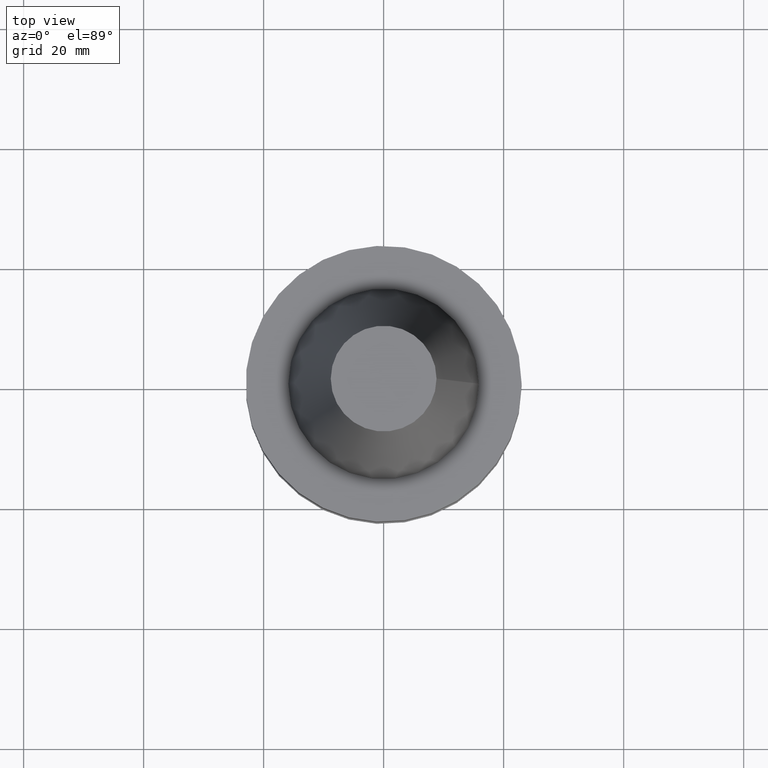
[diagram: clean part render]
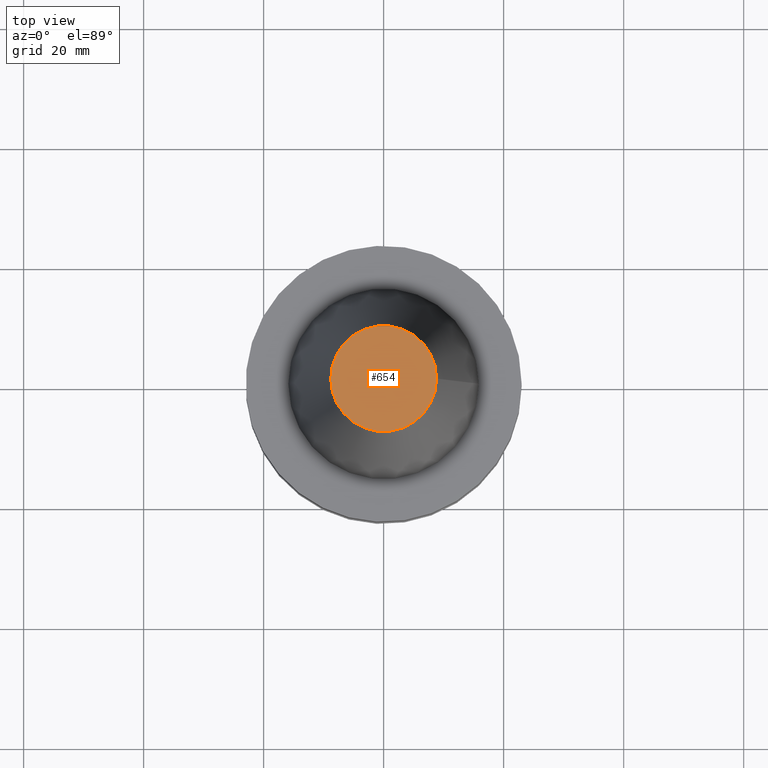
[diagram: same view with one face highlighted and labeled with its STEP entity id]
A machine part, top view. The second image highlights one B-rep face of the part: STEP entity #654.
In plain terms, the highlighted planar face has unit normal (0, 0, -1).
Its self-contained STEP definition (entity closure, byte-faithful):
#28 = FACE_OUTER_BOUND ( 'NONE', #573, .T. ) ;
#35 = CARTESIAN_POINT ( 'NONE',  ( 0.000000000000000000, 8.816600212367498912, 48.39999999999999147 ) ) ;
#129 = ORIENTED_EDGE ( 'NONE', *, *, #218, .T. ) ;
#202 = VERTEX_POINT ( 'NONE', #609 ) ;
#218 = EDGE_CURVE ( 'NONE', #202, #202, #549, .T. ) ;
#234 = AXIS2_PLACEMENT_3D ( 'NONE', #396, #666, #509 ) ;
#336 = AXIS2_PLACEMENT_3D ( 'NONE', #35, #466, #409 ) ;
#396 = CARTESIAN_POINT ( 'NONE',  ( 0.000000000000000000, 0.000000000000000000, 48.39999999999999858 ) ) ;
#409 = DIRECTION ( 'NONE',  ( -1.000000000000000000, 0.000000000000000000, -0.000000000000000000 ) ) ;
#466 = DIRECTION ( 'NONE',  ( 0.000000000000000000, 0.000000000000000000, -1.000000000000000000 ) ) ;
#509 = DIRECTION ( 'NONE',  ( 1.000000000000000000, 0.000000000000000000, 0.000000000000000000 ) ) ;
#549 = CIRCLE ( 'NONE', #234, 8.816600212367498912 ) ;
#573 = EDGE_LOOP ( 'NONE', ( #129 ) ) ;
#609 = CARTESIAN_POINT ( 'NONE',  ( 8.816600212367498912, 0.000000000000000000, 48.39999999999999858 ) ) ;
#612 = PLANE ( 'NONE',  #336 ) ;
#654 = ADVANCED_FACE ( 'NONE', ( #28 ), #612, .F. ) ;
#666 = DIRECTION ( 'NONE',  ( -0.000000000000000000, -0.000000000000000000, 1.000000000000000000 ) ) ;